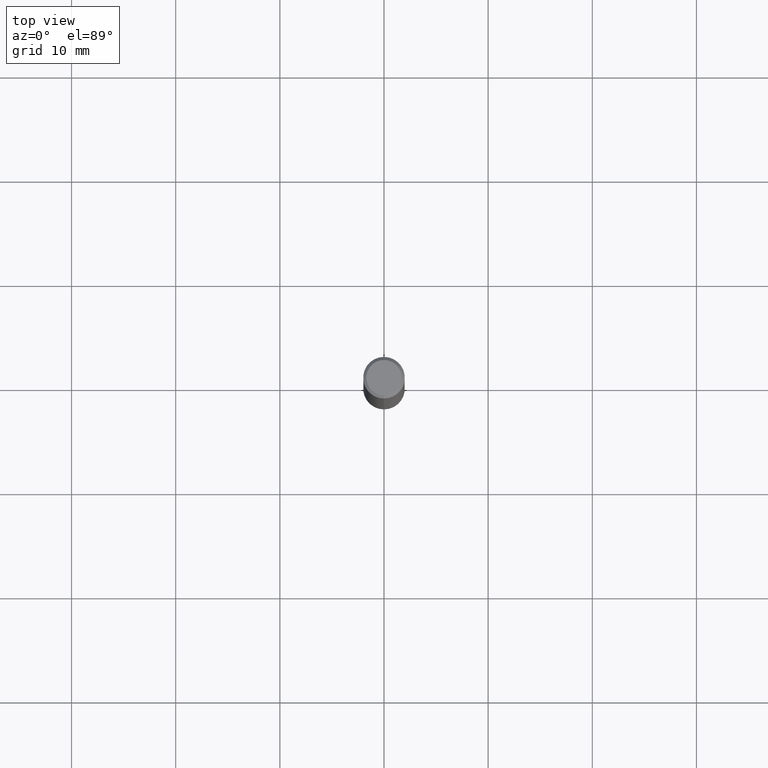
[diagram: clean part render]
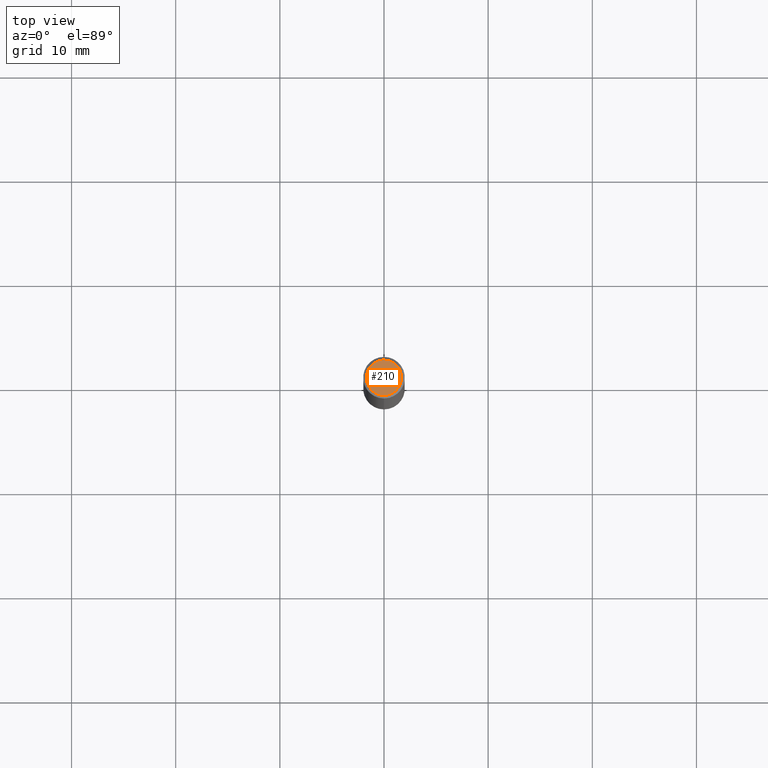
[diagram: same view with one face highlighted and labeled with its STEP entity id]
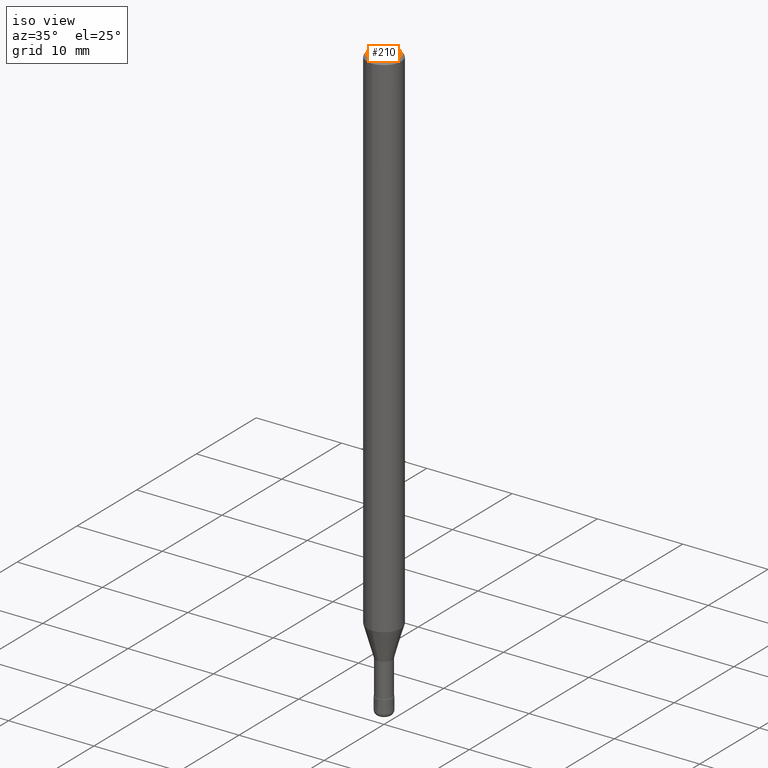
[diagram: same view with one face highlighted and labeled with its STEP entity id]
A machine part, top view. The second image highlights one B-rep face of the part: STEP entity #210.
A second angle (iso view) of the same face is appended — the face is thin or edge-on in the first view.
In plain terms, the highlighted planar face has unit normal (-0, 0, 1).
Its self-contained STEP definition (entity closure, byte-faithful):
#102=VERTEX_POINT('',#255);
#118=VERTEX_POINT('',#273);
#180=EDGE_CURVE('',#118,#102,#344,.T.);
#210=ADVANCED_FACE('',(#375),#376,.T.);
#228=EDGE_CURVE('',#102,#118,#397,.T.);
#255=CARTESIAN_POINT('',(0.0,1.7,0.0));
#273=CARTESIAN_POINT('',(2.08183080149804E-016,-1.7,0.0));
#344=CIRCLE('',#526,1.7);
#375=FACE_OUTER_BOUND('',#568,.T.);
#376=PLANE('',#569);
#397=CIRCLE('',#598,1.7);
#526=AXIS2_PLACEMENT_3D('',#719,#720,#721);
#568=EDGE_LOOP('',(#749,#750));
#569=AXIS2_PLACEMENT_3D('',#751,#752,#753);
#598=AXIS2_PLACEMENT_3D('',#787,#788,#789);
#719=CARTESIAN_POINT('',(0.0,0.0,0.0));
#720=DIRECTION('',(0.0,0.0,-1.0));
#721=DIRECTION('',(0.0,1.0,0.0));
#749=ORIENTED_EDGE('',*,*,#228,.F.);
#750=ORIENTED_EDGE('',*,*,#180,.F.);
#751=CARTESIAN_POINT('',(0.0,0.85,0.0));
#752=DIRECTION('',(-0.0,0.0,1.0));
#753=DIRECTION('',(0.0,-1.0,0.0));
#787=CARTESIAN_POINT('',(0.0,0.0,0.0));
#788=DIRECTION('',(0.0,0.0,-1.0));
#789=DIRECTION('',(0.0,1.0,0.0));